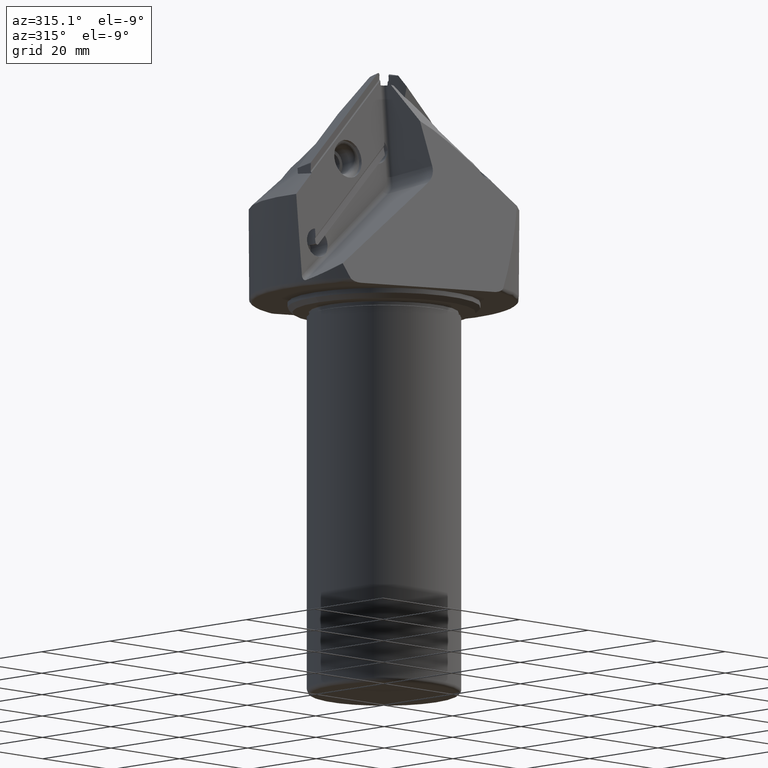
[diagram: clean part render]
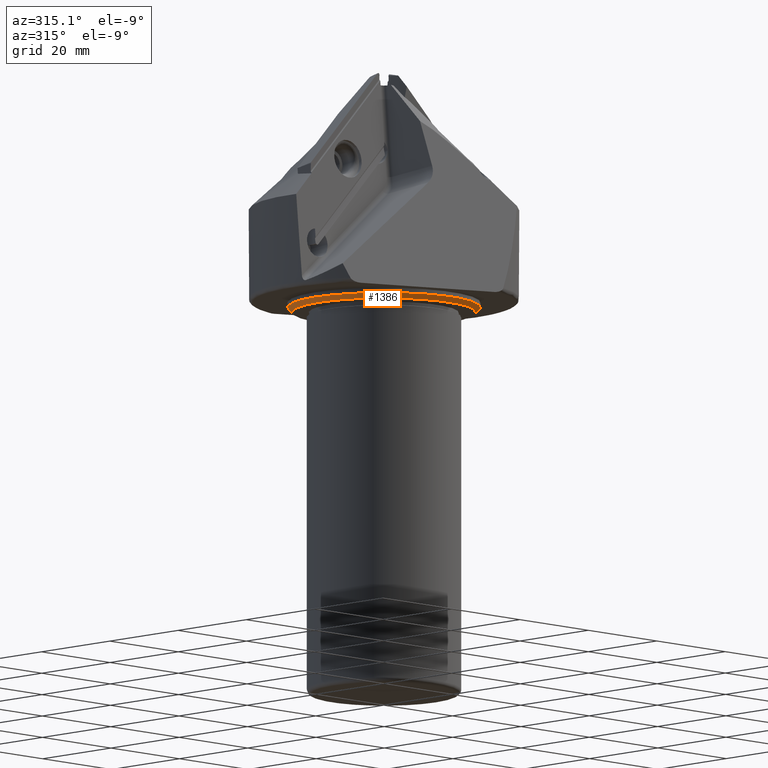
[diagram: same view with one face highlighted and labeled with its STEP entity id]
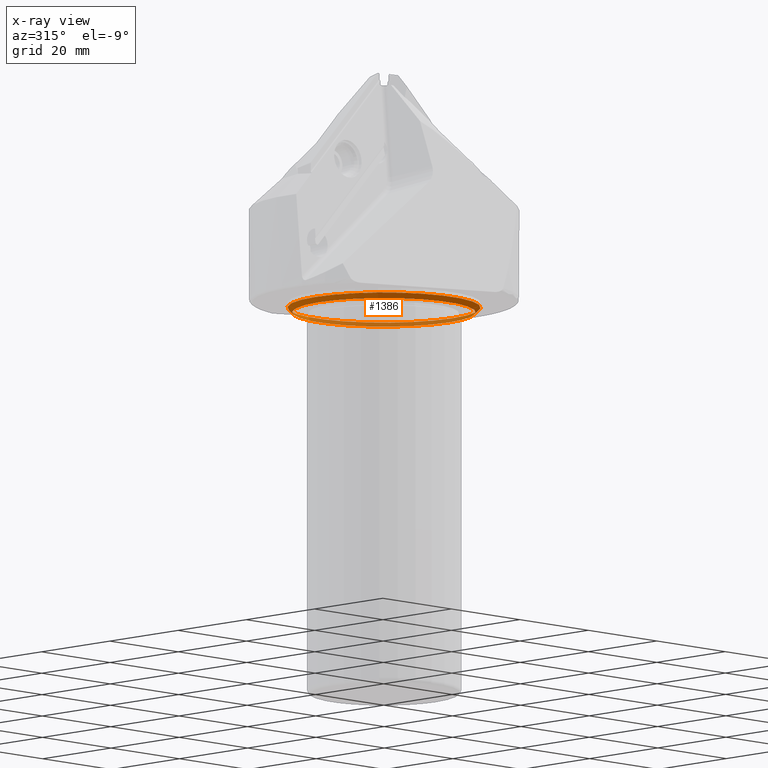
[diagram: x-ray of the same camera — body ghosted, the highlighted face saturated]
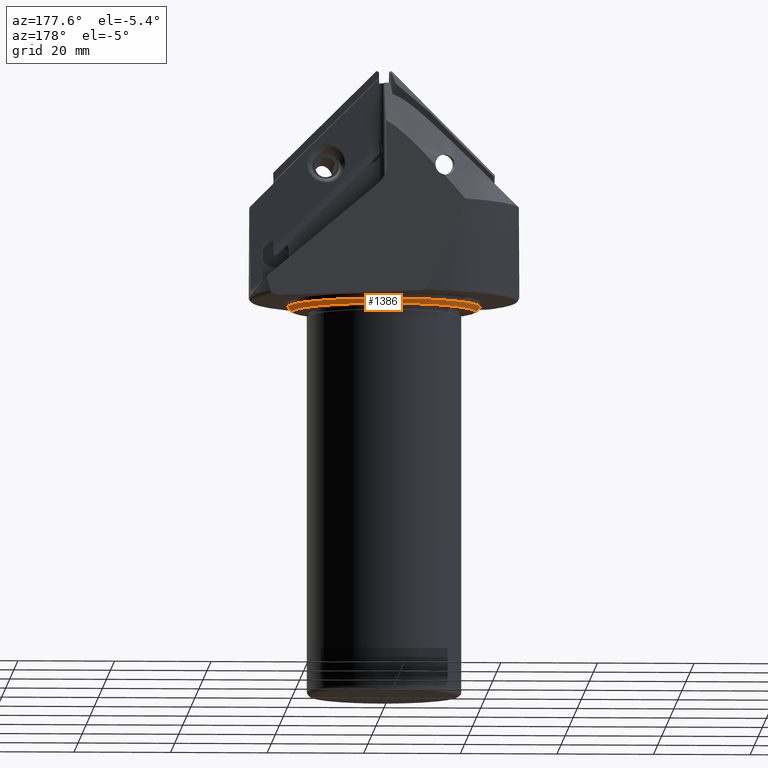
[diagram: same view with one face highlighted and labeled with its STEP entity id]
A machine part, auxiliary view. The second image highlights one B-rep face of the part: STEP entity #1386.
The next image is the same camera in x-ray: the body ghosted, the highlighted face saturated — about 32% of this face is hidden behind the body in this view.
A second angle (auxiliary view) of the same face is appended — the face is thin or edge-on in the first view.
In plain terms, the highlighted conical surface has half-angle 45 deg.
Its self-contained STEP definition (entity closure, byte-faithful):
#67=CONICAL_SURFACE('',#1546,19.5,0.785398163397451);
#134=CIRCLE('',#1547,19.);
#135=CIRCLE('',#1548,20.);
#136=CIRCLE('',#1549,20.);
#202=FACE_OUTER_BOUND('',#281,.T.);
#281=EDGE_LOOP('',(#1148,#1149,#1150,#1151,#1152));
#422=LINE('',#2469,#514);
#514=VECTOR('',#1912,19.5);
#645=VERTEX_POINT('',#2466);
#646=VERTEX_POINT('',#2468);
#647=VERTEX_POINT('',#2470);
#828=EDGE_CURVE('',#645,#645,#134,.T.);
#829=EDGE_CURVE('',#645,#646,#422,.T.);
#830=EDGE_CURVE('',#646,#647,#135,.T.);
#831=EDGE_CURVE('',#647,#646,#136,.T.);
#1148=ORIENTED_EDGE('',*,*,#828,.T.);
#1149=ORIENTED_EDGE('',*,*,#829,.T.);
#1150=ORIENTED_EDGE('',*,*,#830,.T.);
#1151=ORIENTED_EDGE('',*,*,#831,.T.);
#1152=ORIENTED_EDGE('',*,*,#829,.F.);
#1386=ADVANCED_FACE('',(#202),#67,.T.);
#1546=AXIS2_PLACEMENT_3D('',#2465,#1908,#1909);
#1547=AXIS2_PLACEMENT_3D('',#2467,#1910,#1911);
#1548=AXIS2_PLACEMENT_3D('',#2471,#1913,#1914);
#1549=AXIS2_PLACEMENT_3D('',#2472,#1915,#1916);
#1908=DIRECTION('center_axis',(0.,0.,1.));
#1909=DIRECTION('ref_axis',(1.,0.,0.));
#1910=DIRECTION('center_axis',(0.,0.,1.));
#1911=DIRECTION('ref_axis',(1.,0.,0.));
#1912=DIRECTION('',(-0.707106781186549,8.65956056235495E-17,0.707106781186546));
#1913=DIRECTION('center_axis',(0.,0.,-1.));
#1914=DIRECTION('ref_axis',(1.,0.,0.));
#1915=DIRECTION('center_axis',(0.,0.,-1.));
#1916=DIRECTION('ref_axis',(1.,0.,0.));
#2465=CARTESIAN_POINT('Origin',(0.,0.,-46.942));
#2466=CARTESIAN_POINT('',(-19.,-2.32682891837997E-15,-47.442));
#2467=CARTESIAN_POINT('Origin',(0.,0.,-47.442));
#2468=CARTESIAN_POINT('',(-20.,2.44929359829471E-15,-46.442));
#2469=CARTESIAN_POINT('',(-19.5,2.38806125833734E-15,-46.942));
#2470=CARTESIAN_POINT('',(20.,-2.44929359829471E-15,-46.442));
#2471=CARTESIAN_POINT('Origin',(0.,0.,-46.442));
#2472=CARTESIAN_POINT('Origin',(0.,0.,-46.442));